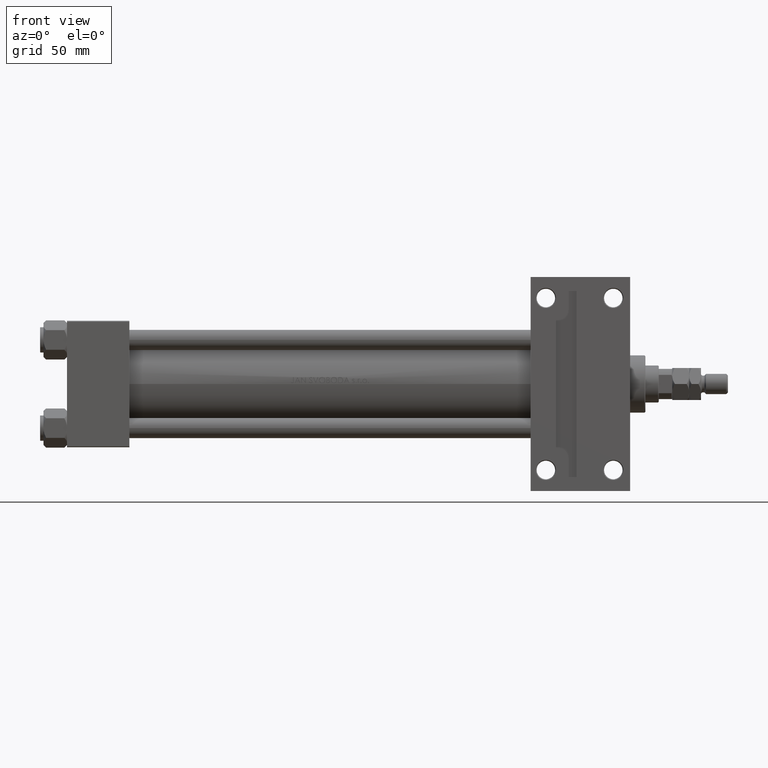
[diagram: clean part render]
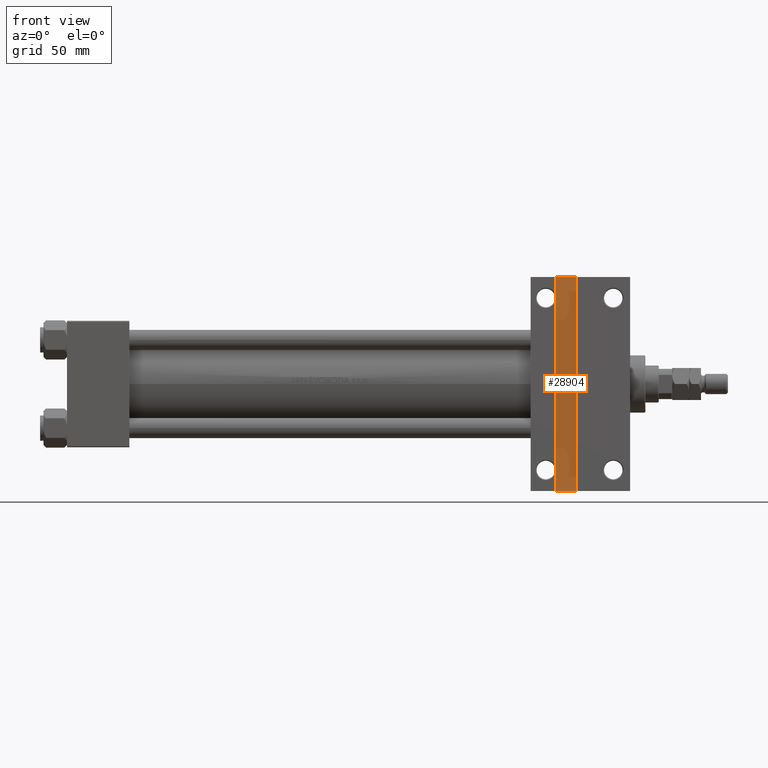
[diagram: same view with one face highlighted and labeled with its STEP entity id]
A machine part, front view. The second image highlights one B-rep face of the part: STEP entity #28904.
In plain terms, the highlighted planar face has unit normal (0, -1, 0).
Its self-contained STEP definition (entity closure, byte-faithful):
#246 = EDGE_CURVE ( 'NONE', #895, #19238, #42664, .T. ) ;
#895 = VERTEX_POINT ( 'NONE', #43022 ) ;
#3922 = EDGE_CURVE ( 'NONE', #19238, #19129, #37369, .T. ) ;
#6872 = VECTOR ( 'NONE', #29594, 1000.000000000000000 ) ;
#18651 = LINE ( 'NONE', #37076, #6872 ) ;
#18959 = DIRECTION ( 'NONE',  ( 1.000000000000000000, 0.000000000000000000, 0.000000000000000000 ) ) ;
#19129 = VERTEX_POINT ( 'NONE', #45219 ) ;
#19238 = VERTEX_POINT ( 'NONE', #27537 ) ;
#21625 = LINE ( 'NONE', #33084, #48719 ) ;
#24643 = DIRECTION ( 'NONE',  ( 0.000000000000000000, 0.000000000000000000, -1.000000000000000000 ) ) ;
#25134 = DIRECTION ( 'NONE',  ( -0.000000000000000000, -1.000000000000000000, -0.000000000000000000 ) ) ;
#25731 = ORIENTED_EDGE ( 'NONE', *, *, #36328, .T. ) ;
#27537 = CARTESIAN_POINT ( 'NONE',  ( 289.9999999999999432, 63.49999999999997158, -32.00000000000000000 ) ) ;
#28079 = EDGE_CURVE ( 'NONE', #19129, #41751, #21625, .T. ) ;
#28761 = VECTOR ( 'NONE', #18959, 1000.000000000000000 ) ;
#28904 = ADVANCED_FACE ( 'NONE', ( #32103 ), #47285, .T. ) ;
#29594 = DIRECTION ( 'NONE',  ( -1.000000000000000000, -0.000000000000000000, -0.000000000000000000 ) ) ;
#32103 = FACE_OUTER_BOUND ( 'NONE', #45539, .T. ) ;
#33084 = CARTESIAN_POINT ( 'NONE',  ( 302.0000000000000000, -63.49999999999997158, -32.00000000000000000 ) ) ;
#35108 = CARTESIAN_POINT ( 'NONE',  ( 301.9999999999999432, -63.50000000000002842, -32.00000000000000000 ) ) ;
#35444 = DIRECTION ( 'NONE',  ( 0.000000000000000000, 1.000000000000000000, 0.000000000000000000 ) ) ;
#36328 = EDGE_CURVE ( 'NONE', #41751, #895, #18651, .T. ) ;
#36402 = ORIENTED_EDGE ( 'NONE', *, *, #246, .T. ) ;
#36567 = DIRECTION ( 'NONE',  ( -1.000000000000000000, 0.000000000000000000, -0.000000000000000000 ) ) ;
#37076 = CARTESIAN_POINT ( 'NONE',  ( 289.9999999999999432, -63.49999999999997158, -32.00000000000000000 ) ) ;
#37369 = LINE ( 'NONE', #45831, #28761 ) ;
#39474 = VECTOR ( 'NONE', #35444, 1000.000000000000000 ) ;
#40125 = ORIENTED_EDGE ( 'NONE', *, *, #28079, .T. ) ;
#41751 = VERTEX_POINT ( 'NONE', #35108 ) ;
#42141 = ORIENTED_EDGE ( 'NONE', *, *, #3922, .T. ) ;
#42391 = AXIS2_PLACEMENT_3D ( 'NONE', #48012, #24643, #36567 ) ;
#42411 = CARTESIAN_POINT ( 'NONE',  ( 289.9999999999999432, -63.49999999999997158, -32.00000000000000000 ) ) ;
#42664 = LINE ( 'NONE', #42411, #39474 ) ;
#43022 = CARTESIAN_POINT ( 'NONE',  ( 289.9999999999999432, -63.49999999999997158, -32.00000000000000000 ) ) ;
#45219 = CARTESIAN_POINT ( 'NONE',  ( 302.0000000000000000, 63.49999999999997158, -32.00000000000000000 ) ) ;
#45539 = EDGE_LOOP ( 'NONE', ( #40125, #25731, #36402, #42141 ) ) ;
#45831 = CARTESIAN_POINT ( 'NONE',  ( 289.9999999999999432, 63.49999999999997158, -32.00000000000000000 ) ) ;
#47285 = PLANE ( 'NONE',  #42391 ) ;
#48012 = CARTESIAN_POINT ( 'NONE',  ( 0.000000000000000000, 0.000000000000000000, -32.00000000000000000 ) ) ;
#48719 = VECTOR ( 'NONE', #25134, 1000.000000000000000 ) ;